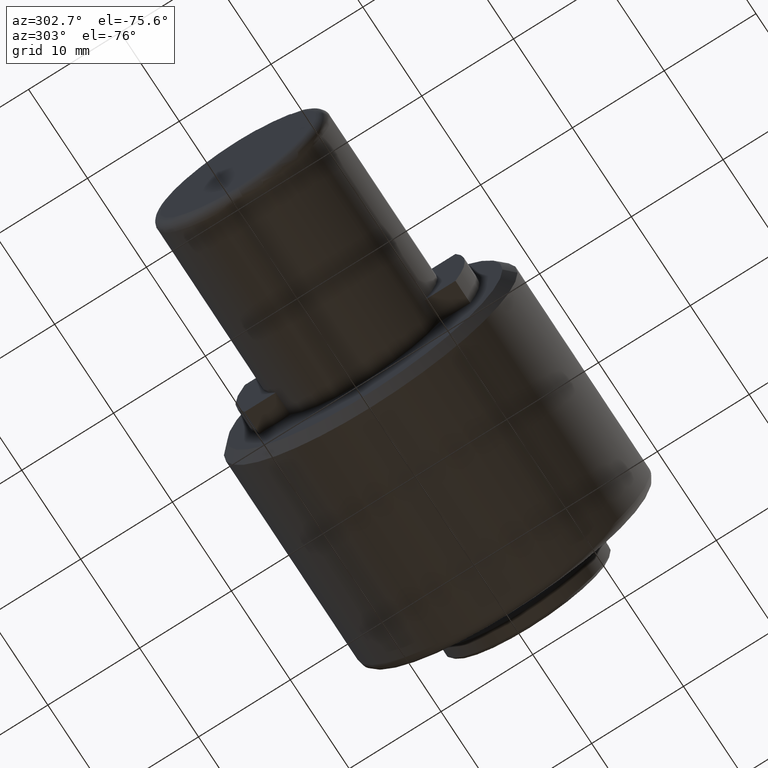
[diagram: clean part render]
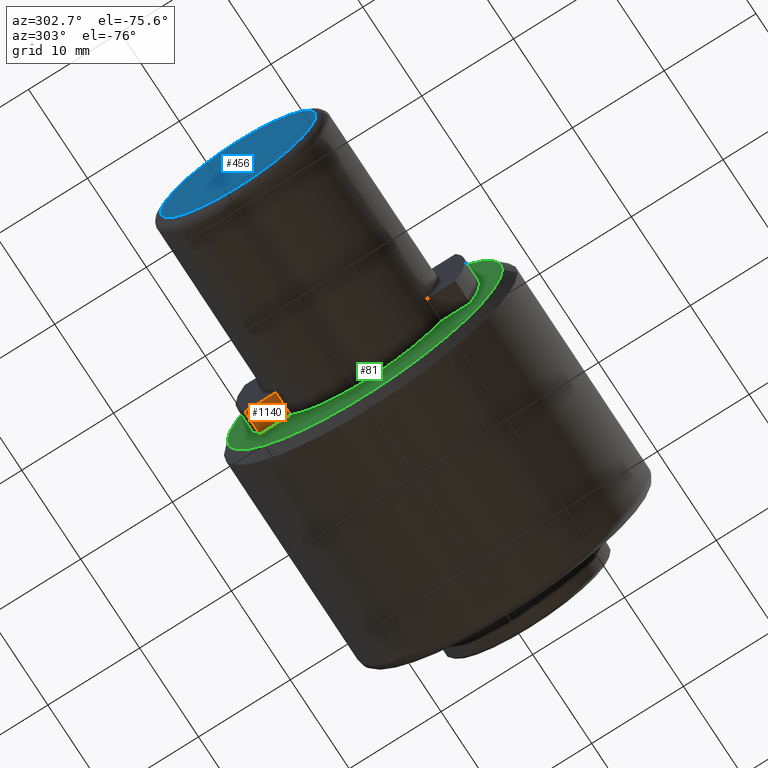
[diagram: same view with three faces highlighted in distinct colors, each labeled with its STEP entity id]
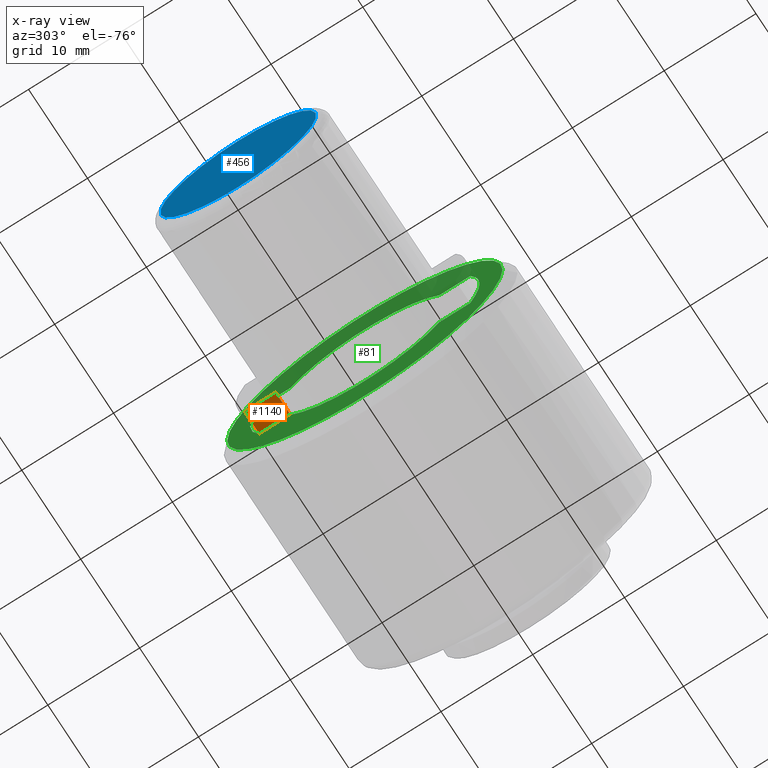
[diagram: x-ray of the same camera — body ghosted, the three highlighted faces saturated]
A machine part, auxiliary view with three faces highlighted in distinct colors.
The next image is the same camera in x-ray (body ghosted, the three faces saturated) — at least one of them is partly hidden behind the body in this view.
Their STEP definitions:

[orange] entity #1140 — the highlighted planar face has unit normal (-0, 0, 1).
#12 = CARTESIAN_POINT ( 'NONE',  ( 19.00000000000000000, 11.47813138099999900, -4.950000000000000200 ) ) ;
#22 = ORIENTED_EDGE ( 'NONE', *, *, #105, .F. ) ;
#40 = EDGE_CURVE ( 'NONE', #598, #717, #1183, .T. ) ;
#48 = CARTESIAN_POINT ( 'NONE',  ( 19.00000000000000000, 10.30424160600000100, -4.950000000000000200 ) ) ;
#74 = DIRECTION ( 'NONE',  ( -1.000000000000000000, -0.0000000000000000000, -0.0000000000000000000 ) ) ;
#105 = EDGE_CURVE ( 'NONE', #298, #354, #818, .T. ) ;
#112 = VECTOR ( 'NONE', #831, 1000.000000000000000 ) ;
#117 = CARTESIAN_POINT ( 'NONE',  ( 20.25000000000000000, 11.47813138099999900, -4.950000000000000200 ) ) ;
#203 = PLANE ( 'NONE',  #961 ) ;
#215 = VECTOR ( 'NONE', #488, 1000.000000000000000 ) ;
#216 = CARTESIAN_POINT ( 'NONE',  ( 21.50000000000000000, 0.0000000000000000000, -4.949999992080006600 ) ) ;
#265 = DIRECTION ( 'NONE',  ( -1.000000000000000000, 0.0000000000000000000, 0.0000000000000000000 ) ) ;
#284 = CARTESIAN_POINT ( 'NONE',  ( 21.50000000000000000, 11.47813138271872400, -4.949999996040002500 ) ) ;
#298 = VERTEX_POINT ( 'NONE', #284 ) ;
#354 = VERTEX_POINT ( 'NONE', #881 ) ;
#479 = EDGE_CURVE ( 'NONE', #717, #354, #1007, .T. ) ;
#488 = DIRECTION ( 'NONE',  ( -0.0000000000000000000, -1.000000000000000000, -0.0000000000000000000 ) ) ;
#539 = LINE ( 'NONE', #216, #215 ) ;
#553 = ORIENTED_EDGE ( 'NONE', *, *, #682, .T. ) ;
#598 = VERTEX_POINT ( 'NONE', #738 ) ;
#682 = EDGE_CURVE ( 'NONE', #298, #598, #539, .T. ) ;
#699 = ORIENTED_EDGE ( 'NONE', *, *, #479, .T. ) ;
#705 = VECTOR ( 'NONE', #265, 1000.000000000000000 ) ;
#717 = VERTEX_POINT ( 'NONE', #770 ) ;
#738 = CARTESIAN_POINT ( 'NONE',  ( 21.50000000000000000, 8.108483214896875100, -4.949999995326831700 ) ) ;
#762 = CARTESIAN_POINT ( 'NONE',  ( 13.83991106400000100, 8.108483212914778800, -4.949999998573657600 ) ) ;
#770 = CARTESIAN_POINT ( 'NONE',  ( 18.99999999934733800, 8.108483212479408000, -4.949999999286828400 ) ) ;
#818 = LINE ( 'NONE', #117, #1174 ) ;
#831 = DIRECTION ( 'NONE',  ( 0.0000000000000000000, 1.000000000000000000, 0.0000000000000000000 ) ) ;
#862 = DIRECTION ( 'NONE',  ( -0.0000000000000000000, 0.0000000000000000000, 1.000000000000000000 ) ) ;
#881 = CARTESIAN_POINT ( 'NONE',  ( 19.00000000000000400, 11.47813138101095600, -4.950000000000000200 ) ) ;
#883 = DIRECTION ( 'NONE',  ( 0.0000000000000000000, -1.000000000000000000, 0.0000000000000000000 ) ) ;
#898 = EDGE_LOOP ( 'NONE', ( #553, #1193, #699, #22 ) ) ;
#961 = AXIS2_PLACEMENT_3D ( 'NONE', #12, #862, #883 ) ;
#1007 = LINE ( 'NONE', #48, #112 ) ;
#1077 = FACE_OUTER_BOUND ( 'NONE', #898, .T. ) ;
#1140 = ADVANCED_FACE ( 'NONE', ( #1077 ), #203, .F. ) ;
#1174 = VECTOR ( 'NONE', #74, 1000.000000000000000 ) ;
#1183 = LINE ( 'NONE', #762, #705 ) ;
#1193 = ORIENTED_EDGE ( 'NONE', *, *, #40, .T. ) ;

[blue] entity #456 — the highlighted planar face has unit normal (1, -0, 0).
#75 = VERTEX_POINT ( 'NONE', #510 ) ;
#185 = AXIS2_PLACEMENT_3D ( 'NONE', #863, #306, #884 ) ;
#238 = EDGE_LOOP ( 'NONE', ( #743, #466 ) ) ;
#239 = DIRECTION ( 'NONE',  ( 1.000000000000000000, -0.0000000000000000000, 0.0000000000000000000 ) ) ;
#249 = CIRCLE ( 'NONE', #185, 8.500000000000000000 ) ;
#300 = VERTEX_POINT ( 'NONE', #950 ) ;
#306 = DIRECTION ( 'NONE',  ( -1.000000000000000000, 0.0000000000000000000, -0.0000000000000000000 ) ) ;
#315 = DIRECTION ( 'NONE',  ( 0.0000000000000000000, 0.0000000000000000000, -1.000000000000000000 ) ) ;
#456 = ADVANCED_FACE ( 'NONE', ( #566 ), #663, .F. ) ;
#466 = ORIENTED_EDGE ( 'NONE', *, *, #504, .T. ) ;
#504 = EDGE_CURVE ( 'NONE', #75, #300, #249, .T. ) ;
#510 = CARTESIAN_POINT ( 'NONE',  ( 0.0000000000000000000, -2.641168539454176600E-015, 8.500000000000000000 ) ) ;
#557 = DIRECTION ( 'NONE',  ( -1.000000000000000000, 0.0000000000000000000, -0.0000000000000000000 ) ) ;
#561 = AXIS2_PLACEMENT_3D ( 'NONE', #955, #239, #315 ) ;
#566 = FACE_OUTER_BOUND ( 'NONE', #238, .T. ) ;
#663 = PLANE ( 'NONE',  #561 ) ;
#743 = ORIENTED_EDGE ( 'NONE', *, *, #805, .T. ) ;
#805 = EDGE_CURVE ( 'NONE', #300, #75, #1127, .T. ) ;
#863 = CARTESIAN_POINT ( 'NONE',  ( 0.0000000000000000000, -3.743350658686794500E-015, 0.0000000000000000000 ) ) ;
#884 = DIRECTION ( 'NONE',  ( 0.0000000000000000000, 0.0000000000000000000, -1.000000000000000000 ) ) ;
#950 = CARTESIAN_POINT ( 'NONE',  ( 0.0000000000000000000, -3.743350658686794500E-015, -8.500000000000000000 ) ) ;
#955 = CARTESIAN_POINT ( 'NONE',  ( 0.0000000000000000000, -8.450200000000000600, 8.450200000000000600 ) ) ;
#1038 = CARTESIAN_POINT ( 'NONE',  ( 0.0000000000000000000, -3.743350658686794500E-015, 0.0000000000000000000 ) ) ;
#1127 = CIRCLE ( 'NONE', #1143, 8.500000000000000000 ) ;
#1143 = AXIS2_PLACEMENT_3D ( 'NONE', #1038, #557, #1196 ) ;
#1196 = DIRECTION ( 'NONE',  ( 0.0000000000000000000, 0.0000000000000000000, -1.000000000000000000 ) ) ;

[green] entity #81 — the highlighted planar face has unit normal (1, -0, 0).
#17 = DIRECTION ( 'NONE',  ( -1.000000000000000000, -1.387778780781445700E-016, -0.0000000000000000000 ) ) ;
#19 = CARTESIAN_POINT ( 'NONE',  ( 21.50000000000000000, -11.47813138271872700, 4.949999996039999000 ) ) ;
#51 = CARTESIAN_POINT ( 'NONE',  ( 21.50000000000000000, 0.0000000000000000000, 4.949999992079996900 ) ) ;
#68 = VERTEX_POINT ( 'NONE', #19 ) ;
#81 = ADVANCED_FACE ( 'NONE', ( #319, #707 ), #150, .F. ) ;
#82 = VERTEX_POINT ( 'NONE', #726 ) ;
#84 = CARTESIAN_POINT ( 'NONE',  ( 21.50000000000000400, -8.108483213881616100, 4.949999996989907600 ) ) ;
#113 = DIRECTION ( 'NONE',  ( -1.000000000000000000, -1.387778780781445700E-016, -0.0000000000000000000 ) ) ;
#120 = CIRCLE ( 'NONE', #573, 12.50000000000000000 ) ;
#150 = PLANE ( 'NONE',  #1195 ) ;
#161 = EDGE_CURVE ( 'NONE', #495, #598, #227, .T. ) ;
#166 = CARTESIAN_POINT ( 'NONE',  ( 21.49999999999996800, 14.99999999999996300, 0.0000000000000000000 ) ) ;
#188 = EDGE_CURVE ( 'NONE', #787, #298, #230, .T. ) ;
#204 = LINE ( 'NONE', #310, #307 ) ;
#215 = VECTOR ( 'NONE', #488, 1000.000000000000000 ) ;
#216 = CARTESIAN_POINT ( 'NONE',  ( 21.50000000000000000, 0.0000000000000000000, -4.949999992080006600 ) ) ;
#221 = VERTEX_POINT ( 'NONE', #390 ) ;
#227 = CIRCLE ( 'NONE', #868, 9.500000000000000000 ) ;
#230 = CIRCLE ( 'NONE', #611, 12.50000000000000000 ) ;
#237 = CARTESIAN_POINT ( 'NONE',  ( 21.49999999999996800, -14.99999999999996300, 1.898202538678395200E-015 ) ) ;
#260 = ORIENTED_EDGE ( 'NONE', *, *, #935, .T. ) ;
#264 = DIRECTION ( 'NONE',  ( 1.000000000000000000, 1.156482317317871700E-016, -0.0000000000000000000 ) ) ;
#284 = CARTESIAN_POINT ( 'NONE',  ( 21.50000000000000000, 11.47813138271872400, -4.949999996040002500 ) ) ;
#298 = VERTEX_POINT ( 'NONE', #284 ) ;
#307 = VECTOR ( 'NONE', #973, 1000.000000000000000 ) ;
#310 = CARTESIAN_POINT ( 'NONE',  ( 21.50000000000000000, 0.0000000000000000000, -4.949999992080006600 ) ) ;
#319 = FACE_BOUND ( 'NONE', #899, .T. ) ;
#351 = DIRECTION ( 'NONE',  ( -1.000000000000000000, -1.387778780781445700E-016, -0.0000000000000000000 ) ) ;
#368 = VERTEX_POINT ( 'NONE', #1178 ) ;
#390 = CARTESIAN_POINT ( 'NONE',  ( 21.50000000000000400, -12.50000000000000000, 0.0000000000000000000 ) ) ;
#391 = VECTOR ( 'NONE', #1191, 1000.000000000000000 ) ;
#399 = DIRECTION ( 'NONE',  ( 0.0000000000000000000, 1.000000000000000000, 0.0000000000000000000 ) ) ;
#406 = LINE ( 'NONE', #51, #391 ) ;
#412 = CARTESIAN_POINT ( 'NONE',  ( 21.50000000000000400, -8.108483214452393300, -4.949999996054926600 ) ) ;
#415 = EDGE_CURVE ( 'NONE', #221, #68, #120, .T. ) ;
#416 = CIRCLE ( 'NONE', #890, 14.99999999999996300 ) ;
#429 = CARTESIAN_POINT ( 'NONE',  ( 21.50000000000000000, 11.47813138271872700, 4.949999996039999000 ) ) ;
#453 = CARTESIAN_POINT ( 'NONE',  ( 21.49999999999996800, -4.212971753347065100E-030, 0.0000000000000000000 ) ) ;
#460 = EDGE_CURVE ( 'NONE', #495, #82, #204, .T. ) ;
#470 = DIRECTION ( 'NONE',  ( 0.0000000000000000000, 1.000000000000000000, 0.0000000000000000000 ) ) ;
#478 = VECTOR ( 'NONE', #399, 1000.000000000000000 ) ;
#488 = DIRECTION ( 'NONE',  ( -0.0000000000000000000, -1.000000000000000000, -0.0000000000000000000 ) ) ;
#495 = VERTEX_POINT ( 'NONE', #412 ) ;
#512 = CIRCLE ( 'NONE', #793, 9.500000000000000000 ) ;
#539 = LINE ( 'NONE', #216, #215 ) ;
#563 = EDGE_CURVE ( 'NONE', #1086, #878, #416, .T. ) ;
#573 = AXIS2_PLACEMENT_3D ( 'NONE', #779, #113, #895 ) ;
#598 = VERTEX_POINT ( 'NONE', #738 ) ;
#604 = AXIS2_PLACEMENT_3D ( 'NONE', #827, #264, #930 ) ;
#606 = DIRECTION ( 'NONE',  ( 1.000000000000000000, 1.826024711554533900E-016, 0.0000000000000000000 ) ) ;
#611 = AXIS2_PLACEMENT_3D ( 'NONE', #633, #351, #697 ) ;
#622 = ORIENTED_EDGE ( 'NONE', *, *, #916, .F. ) ;
#623 = ORIENTED_EDGE ( 'NONE', *, *, #460, .F. ) ;
#633 = CARTESIAN_POINT ( 'NONE',  ( 21.50000000000000000, 2.210607693131455000E-031, 0.0000000000000000000 ) ) ;
#634 = ORIENTED_EDGE ( 'NONE', *, *, #739, .F. ) ;
#654 = EDGE_LOOP ( 'NONE', ( #622, #819 ) ) ;
#656 = DIRECTION ( 'NONE',  ( 3.652049423109067300E-016, -1.000000000000000000, -8.881784197001252300E-016 ) ) ;
#682 = EDGE_CURVE ( 'NONE', #298, #598, #539, .T. ) ;
#697 = DIRECTION ( 'NONE',  ( 2.775557561562891400E-016, -1.000000000000000000, 0.0000000000000000000 ) ) ;
#707 = FACE_OUTER_BOUND ( 'NONE', #654, .T. ) ;
#726 = CARTESIAN_POINT ( 'NONE',  ( 21.50000000000000000, -11.47813138271872400, -4.949999996040002500 ) ) ;
#729 = CIRCLE ( 'NONE', #604, 14.99999999999996300 ) ;
#738 = CARTESIAN_POINT ( 'NONE',  ( 21.50000000000000000, 8.108483214896875100, -4.949999995326831700 ) ) ;
#739 = EDGE_CURVE ( 'NONE', #82, #221, #811, .T. ) ;
#761 = ORIENTED_EDGE ( 'NONE', *, *, #1057, .F. ) ;
#779 = CARTESIAN_POINT ( 'NONE',  ( 21.50000000000000000, -2.210607693693726000E-031, 0.0000000000000000000 ) ) ;
#787 = VERTEX_POINT ( 'NONE', #429 ) ;
#793 = AXIS2_PLACEMENT_3D ( 'NONE', #845, #936, #656 ) ;
#811 = CIRCLE ( 'NONE', #882, 12.50000000000000000 ) ;
#819 = ORIENTED_EDGE ( 'NONE', *, *, #563, .F. ) ;
#827 = CARTESIAN_POINT ( 'NONE',  ( 21.49999999999996800, -4.212971753347065100E-030, 0.0000000000000000000 ) ) ;
#832 = VERTEX_POINT ( 'NONE', #84 ) ;
#835 = DIRECTION ( 'NONE',  ( 1.000000000000000000, 1.156482317317871700E-016, -0.0000000000000000000 ) ) ;
#842 = ORIENTED_EDGE ( 'NONE', *, *, #908, .F. ) ;
#845 = CARTESIAN_POINT ( 'NONE',  ( 21.50000000000000000, 2.703665273145965100E-031, 0.0000000000000000000 ) ) ;
#846 = DIRECTION ( 'NONE',  ( 3.652049423109067300E-016, -1.000000000000000000, 0.0000000000000000000 ) ) ;
#860 = CARTESIAN_POINT ( 'NONE',  ( 21.50000000000000000, -1.299390903533431500E-040, 0.0000000000000000000 ) ) ;
#868 = AXIS2_PLACEMENT_3D ( 'NONE', #860, #606, #846 ) ;
#878 = VERTEX_POINT ( 'NONE', #166 ) ;
#882 = AXIS2_PLACEMENT_3D ( 'NONE', #1074, #17, #1004 ) ;
#890 = AXIS2_PLACEMENT_3D ( 'NONE', #453, #835, #470 ) ;
#895 = DIRECTION ( 'NONE',  ( 2.775557561562891400E-016, -1.000000000000000000, 0.0000000000000000000 ) ) ;
#899 = EDGE_LOOP ( 'NONE', ( #761, #260, #842, #1201, #634, #623, #1095, #1123, #1034 ) ) ;
#908 = EDGE_CURVE ( 'NONE', #68, #832, #996, .T. ) ;
#911 = DIRECTION ( 'NONE',  ( 0.0000000000000000000, 0.0000000000000000000, -1.000000000000000000 ) ) ;
#916 = EDGE_CURVE ( 'NONE', #878, #1086, #729, .T. ) ;
#930 = DIRECTION ( 'NONE',  ( 0.0000000000000000000, 1.000000000000000000, 0.0000000000000000000 ) ) ;
#935 = EDGE_CURVE ( 'NONE', #368, #832, #512, .T. ) ;
#936 = DIRECTION ( 'NONE',  ( 1.000000000000000000, 1.826024711554533900E-016, 0.0000000000000000000 ) ) ;
#973 = DIRECTION ( 'NONE',  ( -0.0000000000000000000, -1.000000000000000000, -0.0000000000000000000 ) ) ;
#996 = LINE ( 'NONE', #1027, #478 ) ;
#1004 = DIRECTION ( 'NONE',  ( 2.775557561562891400E-016, -1.000000000000000000, 0.0000000000000000000 ) ) ;
#1027 = CARTESIAN_POINT ( 'NONE',  ( 21.50000000000000000, 0.0000000000000000000, 4.949999992079996900 ) ) ;
#1034 = ORIENTED_EDGE ( 'NONE', *, *, #188, .F. ) ;
#1057 = EDGE_CURVE ( 'NONE', #368, #787, #406, .T. ) ;
#1074 = CARTESIAN_POINT ( 'NONE',  ( 21.50000000000000000, -2.210607693693726000E-031, 0.0000000000000000000 ) ) ;
#1086 = VERTEX_POINT ( 'NONE', #237 ) ;
#1095 = ORIENTED_EDGE ( 'NONE', *, *, #161, .T. ) ;
#1123 = ORIENTED_EDGE ( 'NONE', *, *, #682, .F. ) ;
#1126 = DIRECTION ( 'NONE',  ( 1.000000000000000000, -0.0000000000000000000, 0.0000000000000000000 ) ) ;
#1136 = CARTESIAN_POINT ( 'NONE',  ( 21.50000000000000000, -15.18000000000000100, 15.18000000000000100 ) ) ;
#1178 = CARTESIAN_POINT ( 'NONE',  ( 21.50000000000000000, 8.108483213437139600, 4.949999997717991800 ) ) ;
#1191 = DIRECTION ( 'NONE',  ( 0.0000000000000000000, 1.000000000000000000, 0.0000000000000000000 ) ) ;
#1195 = AXIS2_PLACEMENT_3D ( 'NONE', #1136, #1126, #911 ) ;
#1201 = ORIENTED_EDGE ( 'NONE', *, *, #415, .F. ) ;